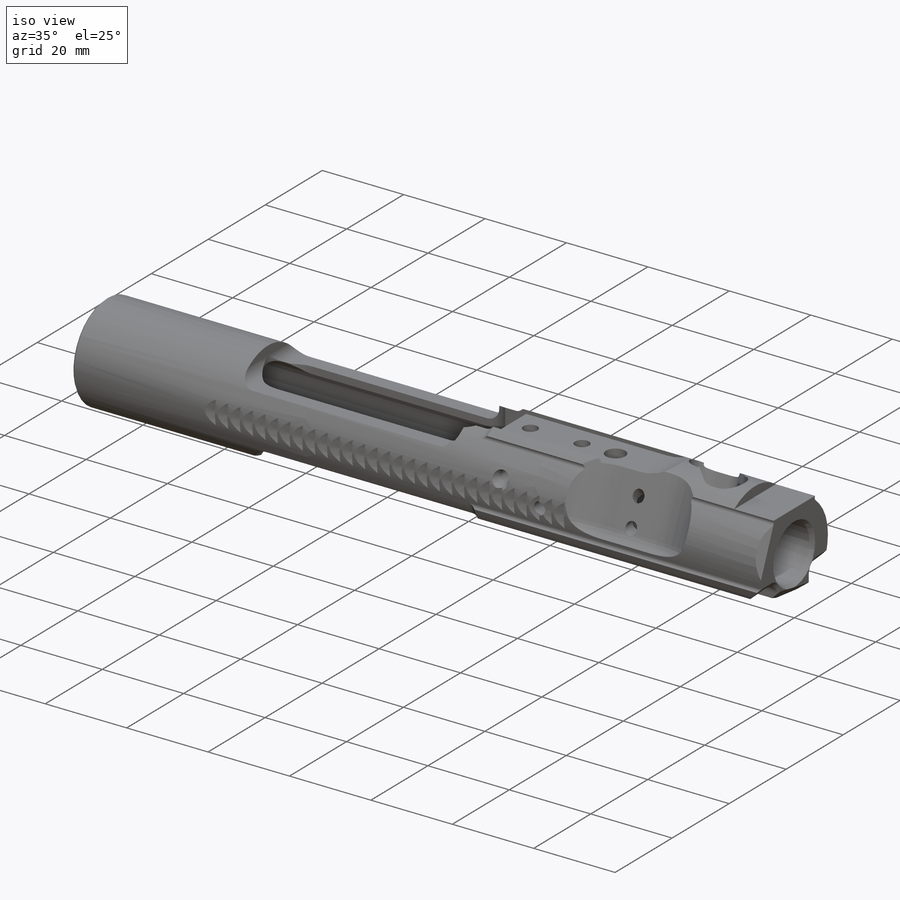
[diagram: iso view]
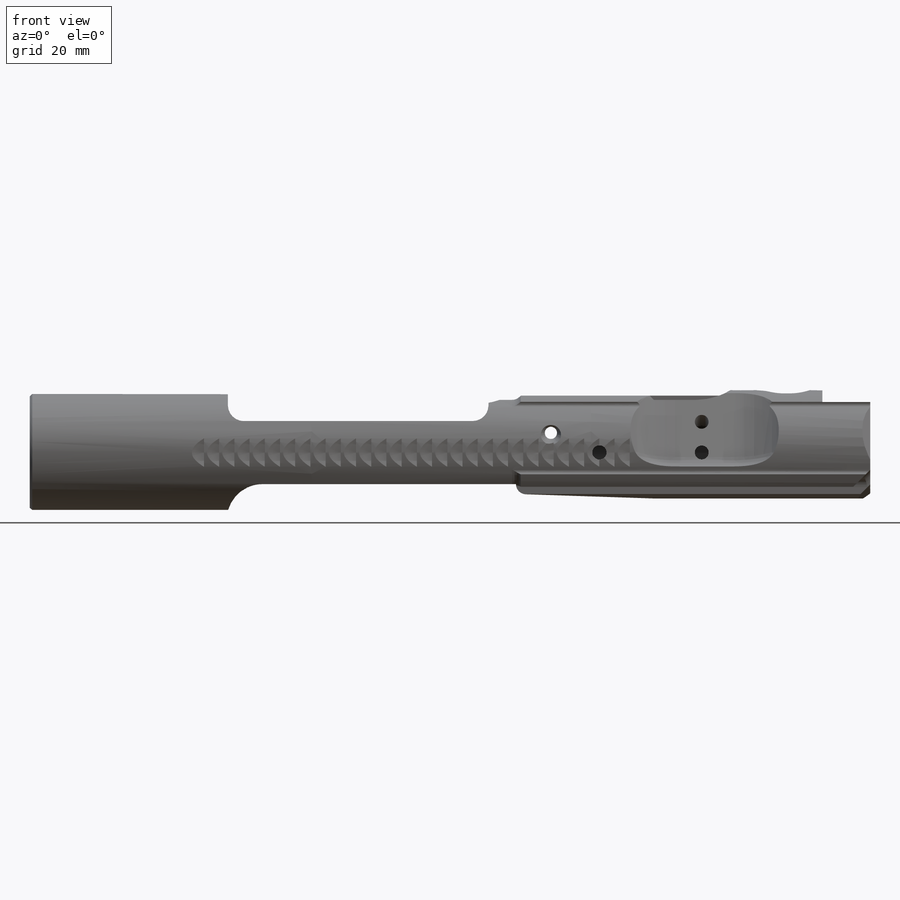
[diagram: front view]
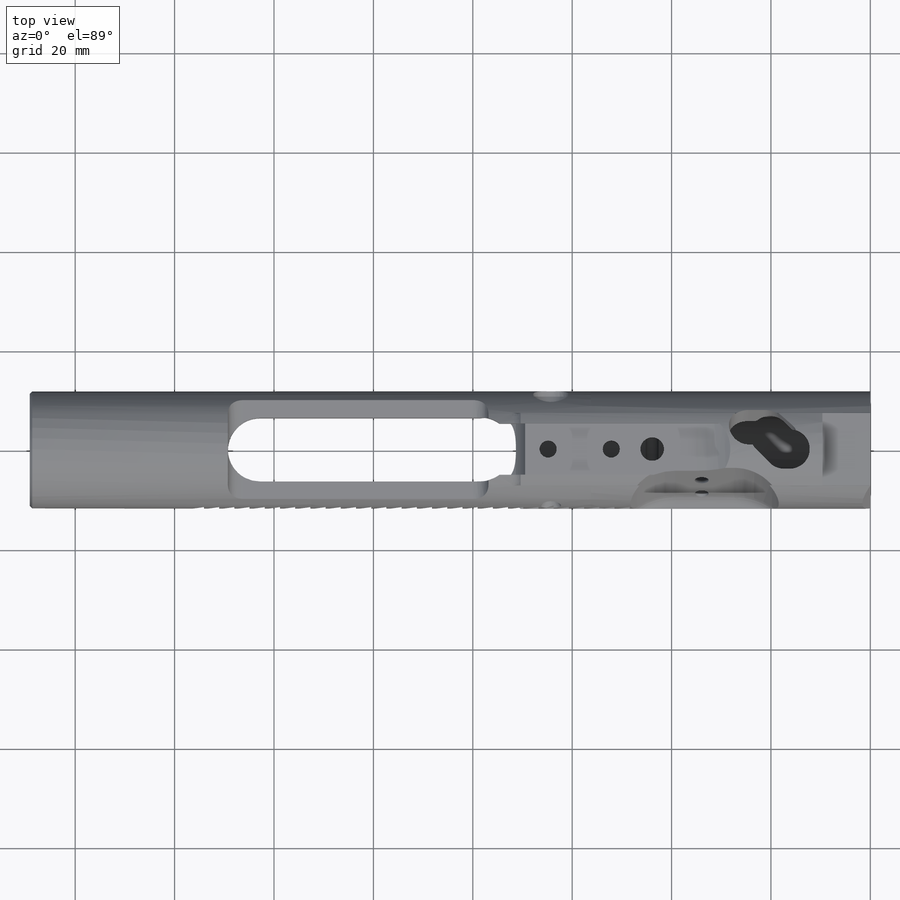
[diagram: top view]
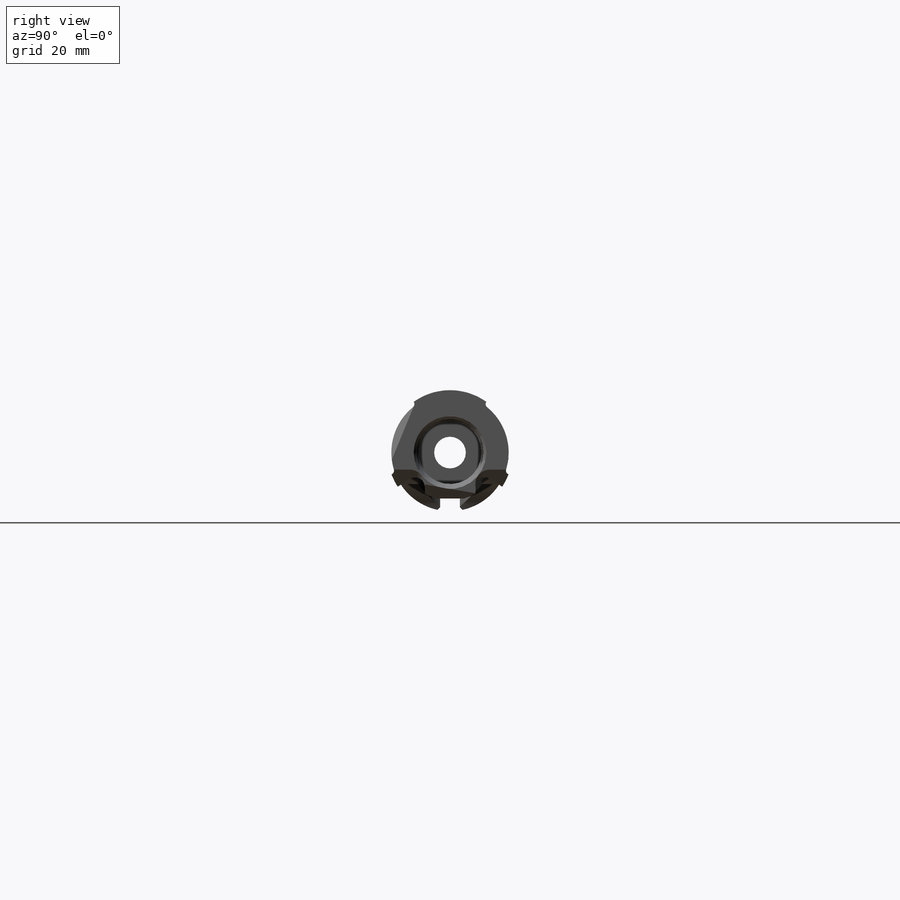
[diagram: right view]
SOLIDWORKS PART (.sldprt)
format: sldprt  version: not decoded by parser v0  size: 1,334,784 bytes
history: native  units: mm
features: sketch x33, cut_extrude x17, plane x9, fillet x6, cut_revolve x5, sweep x3, extrude x2, thread x2, material x1, chamfer x1, mirror x1, hole x1 (+11 scaffold rows collapsed)
feature tree (92):
  scaffold x11  (default folders/planes/origin — collapsed)
  material  "AISI 4130 Steel, annealed at 865C"
  sketch  "Sketch1"  dims[D1=23.5966mm]
  extrude  "Boss-Extrude1"  Depth=169.164mm
  sketch  "Sketch2"  dims[D1=15.875mm]
  cut_extrude  "Cut-Extrude1"  Depth=97.917mm
  fillet  "Fillet1"  Radius=1.5875mm
  sketch  "Sketch3"  dims[c1.D4=3.175mm c1.D7=14.288mm c1.D1=5.448mm c1.D2=39.878mm c1.D3=52.451mm c1.D5=17.241mm c1.D6=1.964mm c1.D8=97.866mm c2.D6=6.35mm c2.D1=6.35mm]
  cut_extrude  "Cut-Extrude2"  Depth=30mm
  sketch  "Sketch4"  dims[D1=12.863mm D2=12.863mm D3=90.691mm]
  cut_extrude  "Cut-Extrude3"  [1 undecoded]
  sketch  "Sketch5"  dims[c1.D1=~17.802031mm c1.D2=12.863mm c2.D1=10.3mm]
  cut_extrude  "Cut-Extrude4"  [1 undecoded]
  sketch  "Sketch6"  dims[D1=8.8159mm D2=3.9878mm D3=2.17mm]
  cut_extrude  "Cut-Extrude5"  [1 undecoded]
  chamfer  "Chamfer1"  Distance=0.508mm
  sketch  "Sketch9"  dims[c1.D8=2.54mm c1.D9=2.54mm c1.D1=13.462mm c1.D2=1.016mm c1.D3=~14.63518mm c1.D4=29.845mm c1.D5=12.7mm c1.D6=0.66mm c1.D7=~15.624256mm c2.D7=~29.996668deg c2.D6=~15.624256mm c3.D6=30.0deg c3.D7=28.829mm c4.D7=~30.00009deg c4.D2=28.829mm c5.D2=30.0deg c5.D3=1.016mm c5.D7=46.863mm c5.D9=2.959mm c5.D10=6.3754mm c5.D11=2.7432mm c5.D12=7.493mm c5.D13=57.4mm c5.D14=11.176mm]
  cut_revolve  "Cut-Revolve1"  Angle=360deg
  sketch  "Sketch12"  dims[c1.D3=1.524mm c1.D4=12.5603mm c1.D1=~10.272703mm c2.D1=39.07deg c2.D2=~12.27331mm c3.D2=106.9deg]
  extrude  "Boss-Extrude2"  Depth=72.0921mm
  sketch  "Sketch13"  dims[D1=70.358mm]
  cut_revolve  "Cut-Revolve2"  Angle=360deg
  sketch  "Sketch10"  dims[D1=12.7mm D4=25.4mm D2=75.782mm D3=11.303mm D5=23.317mm D6=34.925mm]
  cut_extrude  "Cut-Extrude8"  Depth=10.3124mm
  sketch  "Sketch14"  dims[D1=10.1854mm]
  cut_extrude  "Cut-Extrude9"  Depth=9.652mm
  sketch  "Sketch15"  dims[c1.D3=3.969mm c1.D1=~6.852846mm c2.D1=45.32deg c2.D2=9.936mm c2.D4=~5.080443mm c2.D5=2.858mm c2.D6=2.858mm c3.D6=22.5deg c3.D7=9.246mm]
  cut_extrude  "Cut-Extrude10"  Depth=71.2978mm
  sketch  "Sketch17"
  cut_extrude  "Cut-Extrude11"  Depth=81.2978mm
  sketch  "Sketch18"  dims[D1=0.0mm]
  plane  "Plane1"
  sketch  "Sketch19"  dims[D1=89.2097mm]
  sweep  "Cut-Sweep1"
  mirror  "Mirror1"
  sketch  "Sketch20"
  cut_extrude  "Cut-Extrude12"  [1 undecoded]
  sketch  "Sketch22"  dims[D1=3.175mm D2=5.583mm D3=5.639mm]
  cut_extrude  "Cut-Extrude13"  [1 undecoded]
  sketch  "Sketch24"  dims[c1.D1=~19.119368mm c2.D1=5.0deg c2.D2=43.307mm]
  cut_extrude  "Cut-Extrude15"  [1 undecoded]
  sketch  "Sketch25"  dims[D1=3.43mm]
  plane  "Plane2"
  sketch  "Sketch27"  dims[c1.D1=8.059mm c1.D2=4.213mm c1.D3=~22.577421mm c2.D3=7.0deg]
  cut_extrude  "Cut-Extrude17"  Depth=8.3566mm
  sketch  "Sketch28"  dims[c1.D1=~7.681219mm c2.D1=22.5deg]
  plane  "Plane3"
  sketch  "Sketch31"  dims[c1.D1=~3.105536mm c2.D1=45.0deg c2.D2=5.0mm]
  sweep  "Cut-Sweep2"
  plane  "Plane4"  Offset=27.388mm
  sketch  "Sketch32"  dims[c1.D4=6.35mm c1.D1=~9.062342mm c2.D1=22.5deg c2.D2=~9.12109mm c2.D3=~9.12109mm c3.D2=~9.12109mm c3.D3=~0.89102mm]
  plane  "Plane5"
  sketch  "Sketch33"  dims[D1=25.4mm D2=25.4mm D3=~11.89901mm]
  sweep  "Cut-Sweep4"
  fillet  "Fillet2"  Radius=2mm
  sketch  "Sketch34"  dims[c1.D1=4.7498mm c1.D2=4.7498mm c1.D3=3.5052mm c1.D4=3.5052mm c1.D5=3.5052mm c1.D6=3.5052mm c2.D2=43.9039mm c2.D5=~52.14112mm c2.D6=12.7mm]
  cut_extrude  "Cut-Extrude18"  [1 undecoded]
  plane  "Plane6"  Offset=64.2747mm
  sketch  "Sketch35"  dims[c1.D1=~6.64776mm c1.D2=2.4638mm c1.D3=~9.79069mm c1.D4=~9.79069mm c2.D4=30.0deg c2.D5=~6.734333mm c3.D5=30.0deg c3.D6=6.6656mm c3.D7=7.1628mm]
  cut_revolve  "Cut-Revolve3"  Angle=360deg
  sketch  "Sketch36"  dims[c1.D1=2.8702mm c1.D2=2.8702mm c1.D3=2.794mm c1.D4=2.794mm c2.D2=54.5211mm c2.D4=33.9344mm]
  cut_extrude  "Cut-Extrude19"  [1 undecoded]
  plane  "Plane7"  Offset=33.9344mm
  sketch  "Sketch37"  dims[c1.D1=~8.036454mm c2.D1=45.0deg c2.D2=2.794mm]
  cut_revolve  "Cut-Revolve4"  Angle=360deg
  sketch  "Sketch38"  dims[c1.D1=169.164mm c2.D1=~0.048666deg c3.D1=18.8523mm c3.D2=136.5261mm c3.D3=7.9375mm c3.D4=~7.620074mm c4.D4=70.0deg c4.D5=2.4273mm c4.D6=29.0]
  cut_revolve  "Cut-Revolve5"  Angle=360deg
  plane  "Plane8"
  sketch  "Sketch39"  dims[c1.D1=7.9375mm c1.D4=7.9375mm c1.D7=7.9375mm c2.D4=~3.96875mm c2.D7=~3.96875mm c2.D2=16.1608mm c2.D3=1.27mm c2.D5=1.27mm c3.D5=45.0deg c3.D6=2.8063mm]
  cut_extrude  "Cut-Extrude20"  Depth=11.5603mm
  plane  "Plane9"
  sketch  "Sketch40"  dims[c1.D1=7.9375mm c1.D6=7.9375mm c1.D7=7.9375mm c1.D2=24.4793mm c1.D3=~3.206522mm c2.D3=45.0deg c2.D4=3.175mm c2.D5=2.8063mm]
  cut_extrude  "Cut-Extrude21"  Depth=12.5603mm
  hole  "#8-32 Tapped Hole1"  Diameter=3.4544mm Depth=5.029mm
  sketch  "Sketch42"  dims[D1=12.7mm D2=52.141mm]
  sketch  "Sketch41"  dims[hole-wizard template sketch: 60 standard entries collapsed; hole parameters kept: c18.Thru Tap Drill Depth=5.029mm]
  thread  "Hole Thread1"  Diameter=4.1656mm  [1 undecoded]
  thread  "Hole Thread2"  Diameter=4.1656mm  [1 undecoded]
  fillet  "Fillet3"  Radius=1mm
  fillet  "Fillet4"  Radius=1mm
  fillet  "Fillet5"  Radius=1mm
  fillet  "Fillet6"  Radius=1mm
decode coverage: 57 of 71 modeling features carry decoded parameters
note: ~ marks probable driven/reference dimensions
note: 10 parameter values undecoded
summary: no parameter record found for 8 features
note: suppression state not decoded; provenance and decode notes live in map.json
